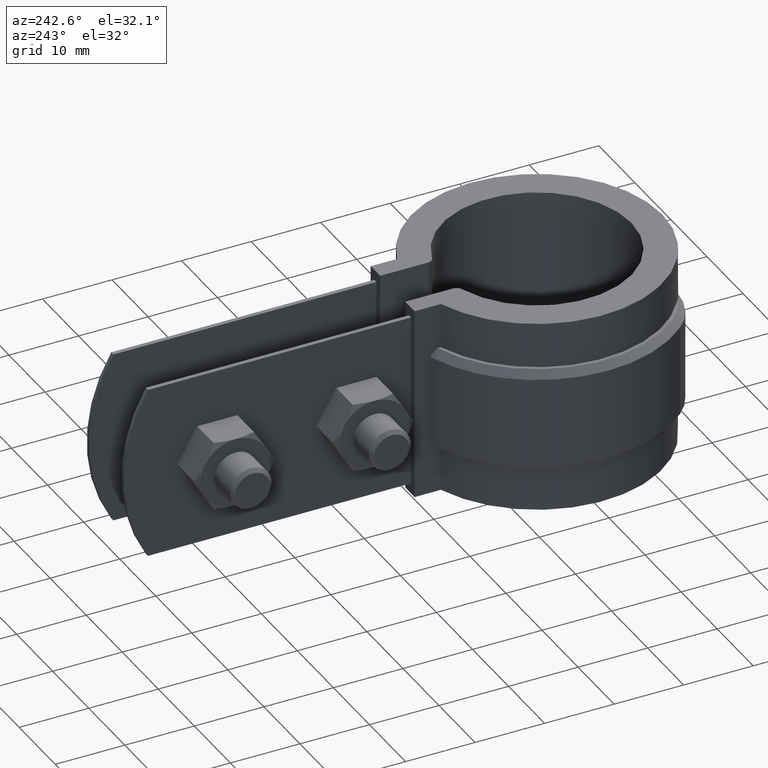
[diagram: clean part render]
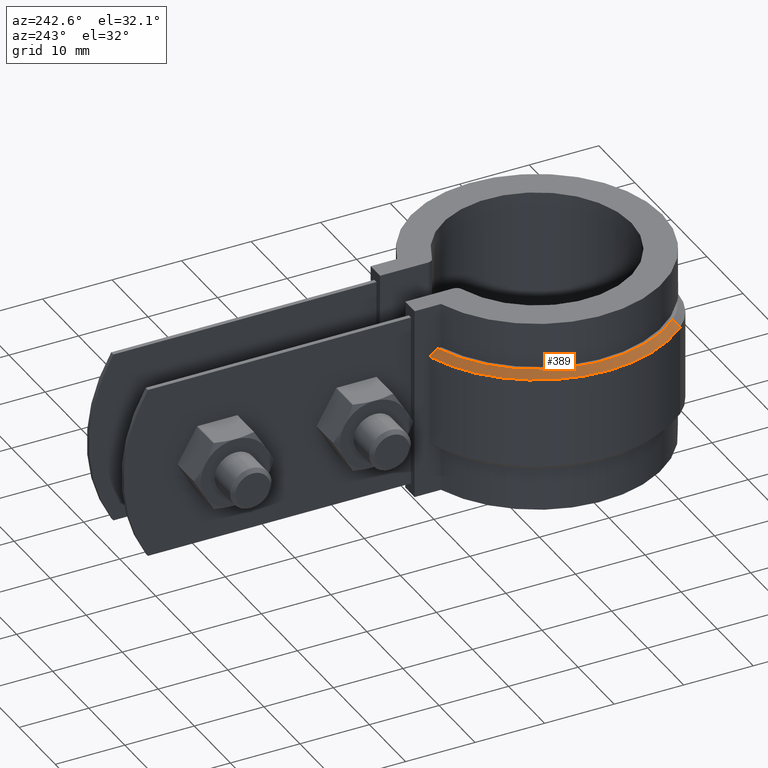
[diagram: same view with one face highlighted and labeled with its STEP entity id]
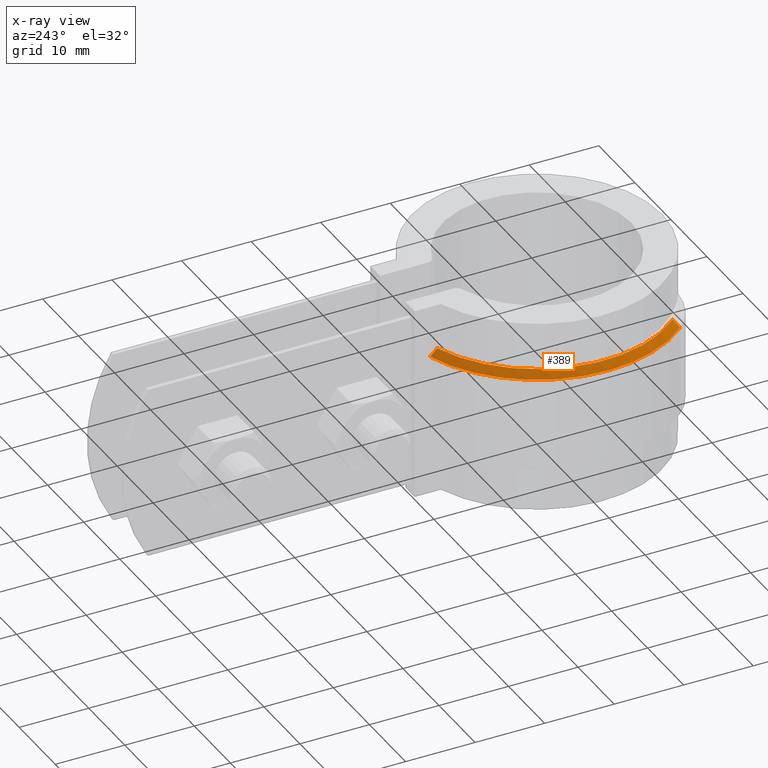
[diagram: x-ray of the same camera — body ghosted, the highlighted face saturated]
A machine part, auxiliary view. The second image highlights one B-rep face of the part: STEP entity #389.
The next image is the same camera in x-ray: the body ghosted, the highlighted face saturated — about 0% of this face is hidden behind the body in this view.
In plain terms, the highlighted conical surface has half-angle 45 deg.
Its self-contained STEP definition (entity closure, byte-faithful):
#389 = ADVANCED_FACE( '', ( #663 ), #664, .T. );
#663 = FACE_OUTER_BOUND( '', #1257, .T. );
#664 = CONICAL_SURFACE( '', #1258, 18.5350000000000, 0.785398163397447 );
#1257 = EDGE_LOOP( '', ( #2662, #2663, #2664, #2665 ) );
#1258 = AXIS2_PLACEMENT_3D( '', #2666, #2667, #2668 );
#2662 = ORIENTED_EDGE( '', *, *, #3983, .F. );
#2663 = ORIENTED_EDGE( '', *, *, #4074, .F. );
#2664 = ORIENTED_EDGE( '', *, *, #4091, .F. );
#2665 = ORIENTED_EDGE( '', *, *, #4094, .F. );
#2666 = CARTESIAN_POINT( '', ( -8.67361737988404E-016, 0.000000000000000, -5.00000000000000 ) );
#2667 = DIRECTION( '', ( 0.000000000000000, 0.000000000000000, -1.00000000000000 ) );
#2668 = DIRECTION( '', ( -1.00000000000000, 0.000000000000000, 0.000000000000000 ) );
#3983 = EDGE_CURVE( '', #4584, #4586, #4587, .T. );
#4074 = EDGE_CURVE( '', #4746, #4584, #4748, .F. );
#4091 = EDGE_CURVE( '', #4771, #4746, #4772, .T. );
#4094 = EDGE_CURVE( '', #4586, #4771, #4775, .T. );
#4584 = VERTEX_POINT( '', #6154 );
#4586 = VERTEX_POINT( '', #6157 );
#4587 = B_SPLINE_CURVE_WITH_KNOTS( '', 3, ( #6158, #6159, #6160, #6161 ), .UNSPECIFIED., .F., .F., ( 4, 4 ), ( 3.87895961444886E-018, 0.00145414847532090 ), .UNSPECIFIED. );
#4746 = VERTEX_POINT( '', #6543 );
#4748 = CIRCLE( '', #6546, 19.5350000000000 );
#4771 = VERTEX_POINT( '', #6579 );
#4772 = LINE( '', #6580, #6581 );
#4775 = CIRCLE( '', #6584, 18.5350000000000 );
#6154 = CARTESIAN_POINT( '', ( -6.10000000000001, 18.5581848519730, -6.00000000000000 ) );
#6157 = CARTESIAN_POINT( '', ( -6.10000000000000, 17.5024633980477, -5.00000000000000 ) );
#6158 = CARTESIAN_POINT( '', ( -6.10000000000001, 18.5581848519730, -6.00000000000000 ) );
#6159 = CARTESIAN_POINT( '', ( -6.10000000000001, 18.2067653264390, -5.66615262270526 ) );
#6160 = CARTESIAN_POINT( '', ( -6.10000000000000, 17.8548851318032, -5.33278923634920 ) );
#6161 = CARTESIAN_POINT( '', ( -6.10000000000000, 17.5024633980477, -5.00000000000000 ) );
#6543 = CARTESIAN_POINT( '', ( -14.5540076052262, -13.0306211527700, -6.00000000000000 ) );
#6546 = AXIS2_PLACEMENT_3D( '', #8007, #8008, #8009 );
#6579 = CARTESIAN_POINT( '', ( -13.8089854600905, -12.3635814213766, -5.00000000000000 ) );
#6580 = CARTESIAN_POINT( '', ( -13.8089854600905, -12.3635814213766, -5.00000000000000 ) );
#6581 = VECTOR( '', #8041, 1000.00000000000 );
#6584 = AXIS2_PLACEMENT_3D( '', #8048, #8049, #8050 );
#8007 = CARTESIAN_POINT( '', ( -8.67361737988404E-016, 0.000000000000000, -6.00000000000000 ) );
#8008 = DIRECTION( '', ( 0.000000000000000, 0.000000000000000, 1.00000000000000 ) );
#8009 = DIRECTION( '', ( 1.00000000000000, 0.000000000000000, 0.000000000000000 ) );
#8041 = DIRECTION( '', ( -0.526810210959614, -0.471668317389122, -0.707106781186548 ) );
#8048 = CARTESIAN_POINT( '', ( -8.67361737988404E-016, 0.000000000000000, -5.00000000000000 ) );
#8049 = DIRECTION( '', ( 0.000000000000000, 0.000000000000000, 1.00000000000000 ) );
#8050 = DIRECTION( '', ( 1.00000000000000, 0.000000000000000, 0.000000000000000 ) );